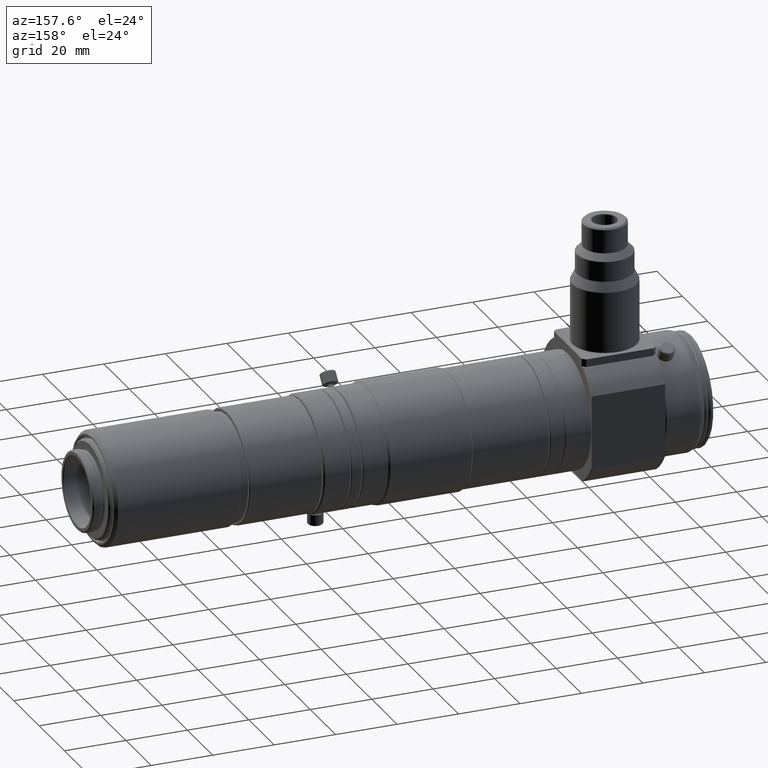
[diagram: clean part render]
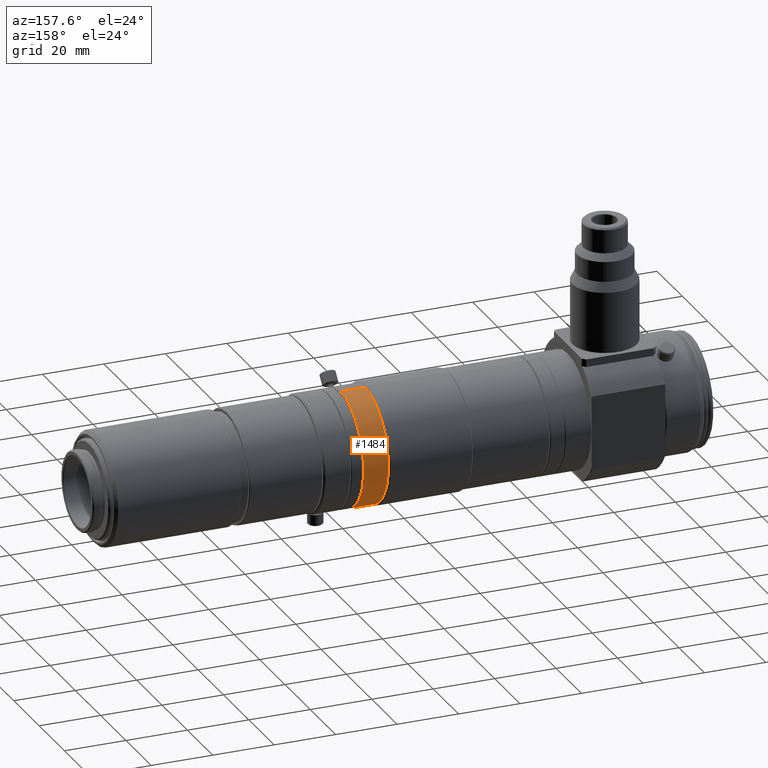
[diagram: same view with one face highlighted and labeled with its STEP entity id]
A machine part, auxiliary view. The second image highlights one B-rep face of the part: STEP entity #1484.
In plain terms, the highlighted cylindrical surface (partial cylindrical patch) has radius 18.5 mm, axis along (1, -0, -0).
Its self-contained STEP definition (entity closure, byte-faithful):
#973 = CARTESIAN_POINT ( 'NONE',  ( 0.0000000000000000000, 0.0000000000000000000, 0.0000000000000000000 ) ) ;
#976 = DIRECTION ( 'NONE',  ( 1.000000000000000000, -0.0000000000000000000, -0.0000000000000000000 ) ) ;
#982 = DIRECTION ( 'NONE',  ( 0.0000000000000000000, 0.0000000000000000000, -1.000000000000000000 ) ) ;
#1484 = ADVANCED_FACE ( 'NONE', ( #5758 ), #5762, .T. ) ;
#1716 = EDGE_CURVE ( 'NONE', #5463, #5300, #6088, .T. ) ;
#2144 = CARTESIAN_POINT ( 'NONE',  ( -99.19217527841203700, 0.0000000000000000000, 0.0000000000000000000 ) ) ;
#2145 = DIRECTION ( 'NONE',  ( 1.000000000000000000, -0.0000000000000000000, -0.0000000000000000000 ) ) ;
#2146 = DIRECTION ( 'NONE',  ( 0.0000000000000000000, 0.0000000000000000000, -1.000000000000000000 ) ) ;
#2150 = CARTESIAN_POINT ( 'NONE',  ( 0.0000000000000000000, 2.265596578422607300E-015, 18.50000000000003200 ) ) ;
#2152 = DIRECTION ( 'NONE',  ( 1.000000000000000000, -0.0000000000000000000, -0.0000000000000000000 ) ) ;
#2159 = CARTESIAN_POINT ( 'NONE',  ( -107.2921752784120300, 0.0000000000000000000, 0.0000000000000000000 ) ) ;
#2160 = DIRECTION ( 'NONE',  ( 1.000000000000000000, -0.0000000000000000000, -0.0000000000000000000 ) ) ;
#2161 = DIRECTION ( 'NONE',  ( 0.0000000000000000000, 0.0000000000000000000, -1.000000000000000000 ) ) ;
#3047 = CARTESIAN_POINT ( 'NONE',  ( -99.19217527841203700, 2.265596578422607300E-015, -18.50000000000003200 ) ) ;
#3052 = CARTESIAN_POINT ( 'NONE',  ( -107.2921752784120300, 2.265596578422607300E-015, 18.50000000000003200 ) ) ;
#3063 = CARTESIAN_POINT ( 'NONE',  ( -99.19217527841203700, 0.0000000000000000000, 18.50000000000003200 ) ) ;
#3210 = CARTESIAN_POINT ( 'NONE',  ( -107.2921752784120300, 0.0000000000000000000, -18.50000000000003200 ) ) ;
#3345 = EDGE_CURVE ( 'NONE', #5300, #5316, #6750, .T. ) ;
#3349 = EDGE_CURVE ( 'NONE', #5305, #5316, #6757, .T. ) ;
#3352 = EDGE_CURVE ( 'NONE', #5463, #5305, #6762, .T. ) ;
#3765 = ORIENTED_EDGE ( 'NONE', *, *, #3349, .T. ) ;
#3774 = ORIENTED_EDGE ( 'NONE', *, *, #1716, .F. ) ;
#3821 = ORIENTED_EDGE ( 'NONE', *, *, #3345, .F. ) ;
#3863 = ORIENTED_EDGE ( 'NONE', *, *, #3352, .T. ) ;
#4408 = EDGE_LOOP ( 'NONE', ( #3863, #3765, #3821, #3774 ) ) ;
#4655 = AXIS2_PLACEMENT_3D ( 'NONE', #973, #976, #982 ) ;
#5300 = VERTEX_POINT ( 'NONE', #3047 ) ;
#5305 = VERTEX_POINT ( 'NONE', #3052 ) ;
#5316 = VERTEX_POINT ( 'NONE', #3063 ) ;
#5463 = VERTEX_POINT ( 'NONE', #3210 ) ;
#5758 = FACE_OUTER_BOUND ( 'NONE', #4408, .T. ) ;
#5762 = CYLINDRICAL_SURFACE ( 'NONE', #4655, 18.50000000000003200 ) ;
#6088 = LINE ( 'NONE', #7127, #6093 ) ;
#6093 = VECTOR ( 'NONE', #7134, 1000.000000000000000 ) ;
#6750 = CIRCLE ( 'NONE', #7273, 18.50000000000003200 ) ;
#6757 = LINE ( 'NONE', #2150, #6760 ) ;
#6760 = VECTOR ( 'NONE', #2152, 1000.000000000000000 ) ;
#6762 = CIRCLE ( 'NONE', #7275, 18.50000000000003200 ) ;
#7127 = CARTESIAN_POINT ( 'NONE',  ( 0.0000000000000000000, 0.0000000000000000000, -18.50000000000003200 ) ) ;
#7134 = DIRECTION ( 'NONE',  ( 1.000000000000000000, -0.0000000000000000000, -0.0000000000000000000 ) ) ;
#7273 = AXIS2_PLACEMENT_3D ( 'NONE', #2144, #2145, #2146 ) ;
#7275 = AXIS2_PLACEMENT_3D ( 'NONE', #2159, #2160, #2161 ) ;